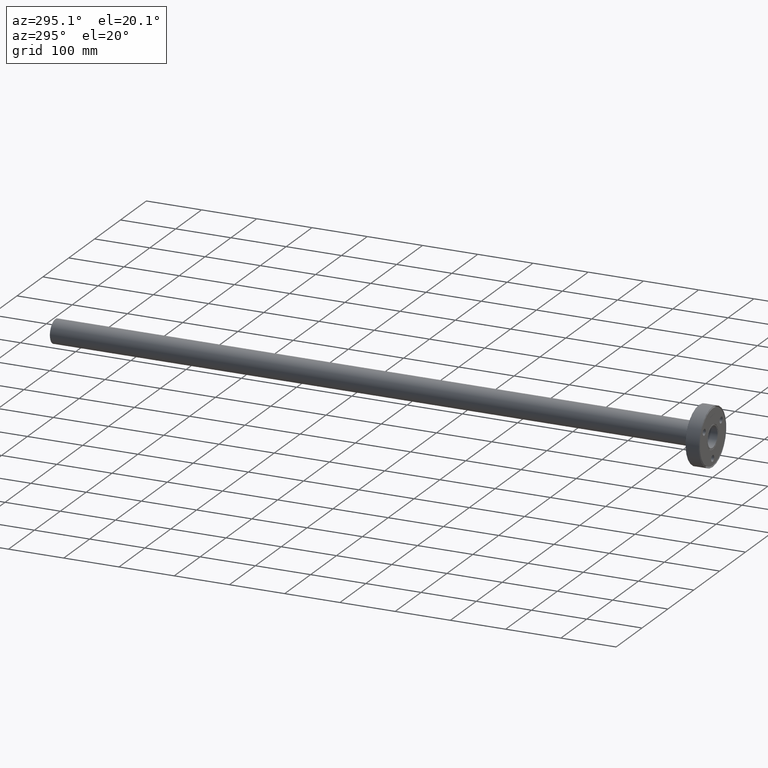
[diagram: clean part render]
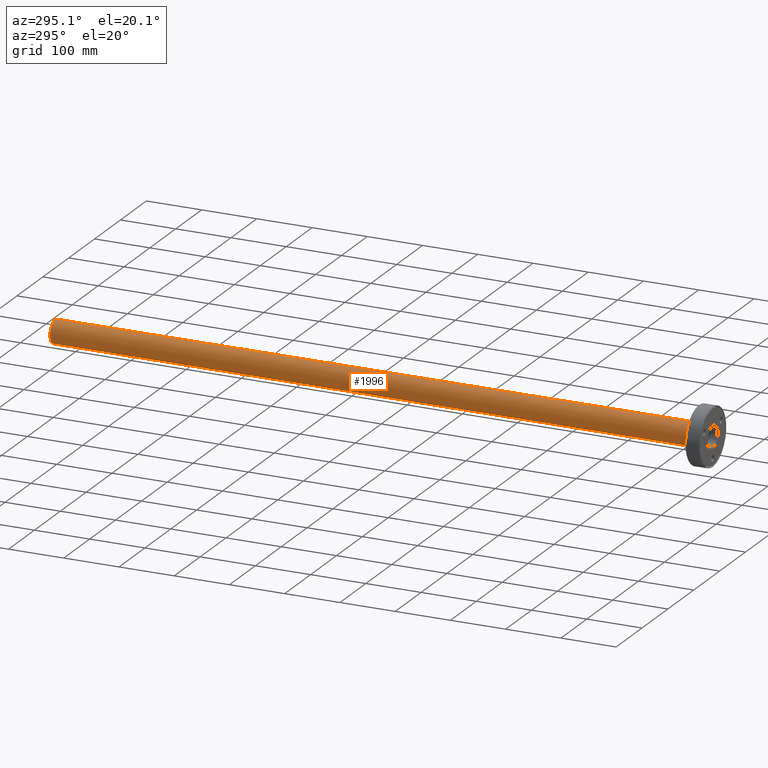
[diagram: same view with one face highlighted and labeled with its STEP entity id]
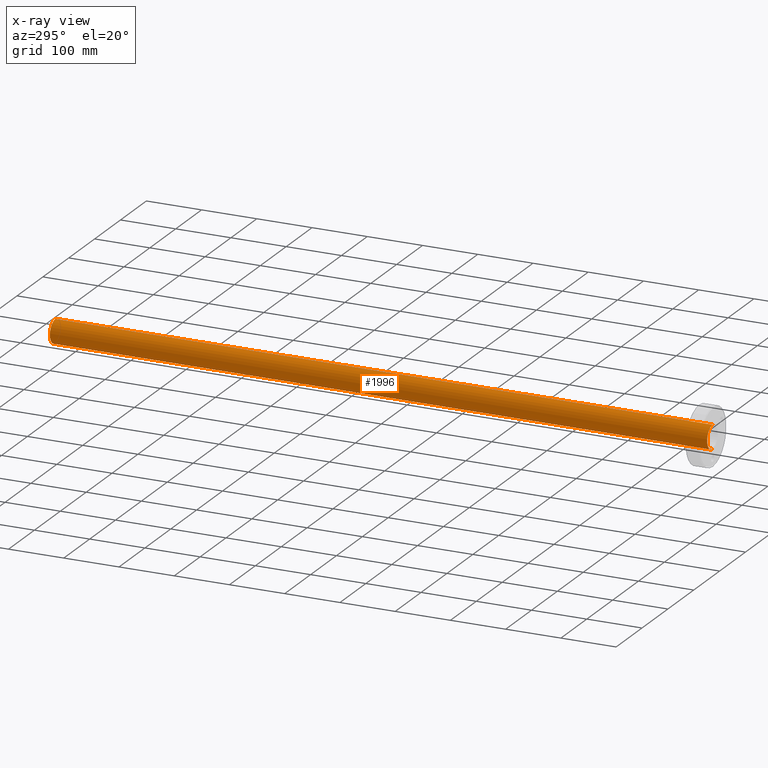
[diagram: x-ray of the same camera — body ghosted, the highlighted face saturated]
A machine part, auxiliary view. The second image highlights one B-rep face of the part: STEP entity #1996.
The next image is the same camera in x-ray: the body ghosted, the highlighted face saturated — about 0% of this face is hidden behind the body in this view.
In plain terms, the highlighted cylindrical surface (edge-blend (fillet) strip) has radius 21.2 mm, axis along (-0, -1, -0).
Its self-contained STEP definition (entity closure, byte-faithful):
#26 = VERTEX_POINT ( 'NONE', #7627 ) ;
#175 = FACE_OUTER_BOUND ( 'NONE', #2357, .T. ) ;
#736 = DIRECTION ( 'NONE',  ( -0.0000000000000000000, -1.000000000000000000, -0.0000000000000000000 ) ) ;
#775 = CARTESIAN_POINT ( 'NONE',  ( 0.0000000000000000000, 0.0000000000000000000, -21.19999999999999900 ) ) ;
#1109 = EDGE_CURVE ( 'NONE', #7061, #26, #10091, .T. ) ;
#1333 = DIRECTION ( 'NONE',  ( -0.0000000000000000000, -1.000000000000000000, -0.0000000000000000000 ) ) ;
#1996 = ADVANCED_FACE ( 'NONE', ( #175 ), #13561, .T. ) ;
#2339 = ORIENTED_EDGE ( 'NONE', *, *, #10533, .F. ) ;
#2357 = EDGE_LOOP ( 'NONE', ( #14006, #2339, #5822, #4364 ) ) ;
#2531 = CIRCLE ( 'NONE', #9914, 21.19999999999999900 ) ;
#3376 = DIRECTION ( 'NONE',  ( 0.0000000000000000000, 0.0000000000000000000, -1.000000000000000000 ) ) ;
#4364 = ORIENTED_EDGE ( 'NONE', *, *, #1109, .T. ) ;
#4745 = CARTESIAN_POINT ( 'NONE',  ( 0.0000000000000000000, 1190.000000000000000, 0.0000000000000000000 ) ) ;
#5181 = AXIS2_PLACEMENT_3D ( 'NONE', #12460, #8282, #13902 ) ;
#5295 = CARTESIAN_POINT ( 'NONE',  ( 2.596251214192388800E-015, 1190.000000000000000, 21.19999999999999900 ) ) ;
#5659 = VECTOR ( 'NONE', #1333, 1000.000000000000000 ) ;
#5822 = ORIENTED_EDGE ( 'NONE', *, *, #10115, .T. ) ;
#5856 = CARTESIAN_POINT ( 'NONE',  ( 0.0000000000000000000, 1190.000000000000000, -21.19999999999999900 ) ) ;
#7061 = VERTEX_POINT ( 'NONE', #775 ) ;
#7627 = CARTESIAN_POINT ( 'NONE',  ( 2.596251214192388800E-015, 0.0000000000000000000, 21.19999999999999900 ) ) ;
#8282 = DIRECTION ( 'NONE',  ( 0.0000000000000000000, 1.000000000000000000, 0.0000000000000000000 ) ) ;
#8539 = AXIS2_PLACEMENT_3D ( 'NONE', #10078, #12510, #3376 ) ;
#9017 = VECTOR ( 'NONE', #736, 1000.000000000000000 ) ;
#9317 = VERTEX_POINT ( 'NONE', #5295 ) ;
#9914 = AXIS2_PLACEMENT_3D ( 'NONE', #4745, #12565, #11595 ) ;
#10078 = CARTESIAN_POINT ( 'NONE',  ( 0.0000000000000000000, 1190.000000000000000, 0.0000000000000000000 ) ) ;
#10091 = CIRCLE ( 'NONE', #5181, 21.19999999999999900 ) ;
#10115 = EDGE_CURVE ( 'NONE', #11916, #7061, #10255, .T. ) ;
#10202 = CARTESIAN_POINT ( 'NONE',  ( 0.0000000000000000000, 1190.000000000000000, -21.19999999999999900 ) ) ;
#10255 = LINE ( 'NONE', #10202, #9017 ) ;
#10533 = EDGE_CURVE ( 'NONE', #11916, #9317, #2531, .T. ) ;
#11595 = DIRECTION ( 'NONE',  ( 0.0000000000000000000, 0.0000000000000000000, 1.000000000000000000 ) ) ;
#11619 = LINE ( 'NONE', #13424, #5659 ) ;
#11916 = VERTEX_POINT ( 'NONE', #5856 ) ;
#12460 = CARTESIAN_POINT ( 'NONE',  ( 0.0000000000000000000, 0.0000000000000000000, 0.0000000000000000000 ) ) ;
#12510 = DIRECTION ( 'NONE',  ( -0.0000000000000000000, -1.000000000000000000, -0.0000000000000000000 ) ) ;
#12565 = DIRECTION ( 'NONE',  ( 0.0000000000000000000, 1.000000000000000000, 0.0000000000000000000 ) ) ;
#13424 = CARTESIAN_POINT ( 'NONE',  ( 2.596251214192388800E-015, 1190.000000000000000, 21.19999999999999900 ) ) ;
#13561 = CYLINDRICAL_SURFACE ( 'NONE', #8539, 21.19999999999999900 ) ;
#13902 = DIRECTION ( 'NONE',  ( 0.0000000000000000000, 0.0000000000000000000, 1.000000000000000000 ) ) ;
#14006 = ORIENTED_EDGE ( 'NONE', *, *, #14230, .F. ) ;
#14230 = EDGE_CURVE ( 'NONE', #9317, #26, #11619, .T. ) ;